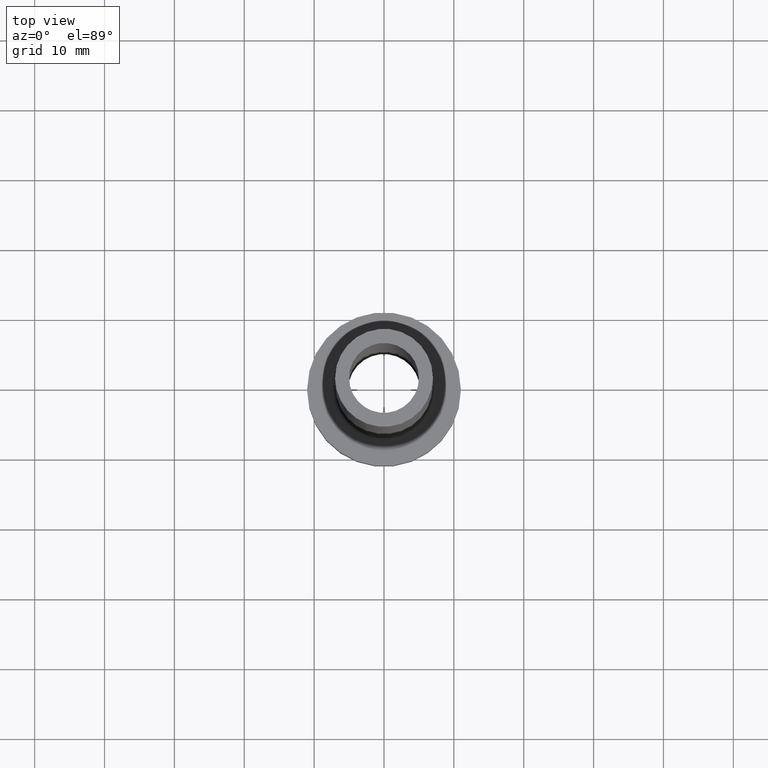
[diagram: clean part render]
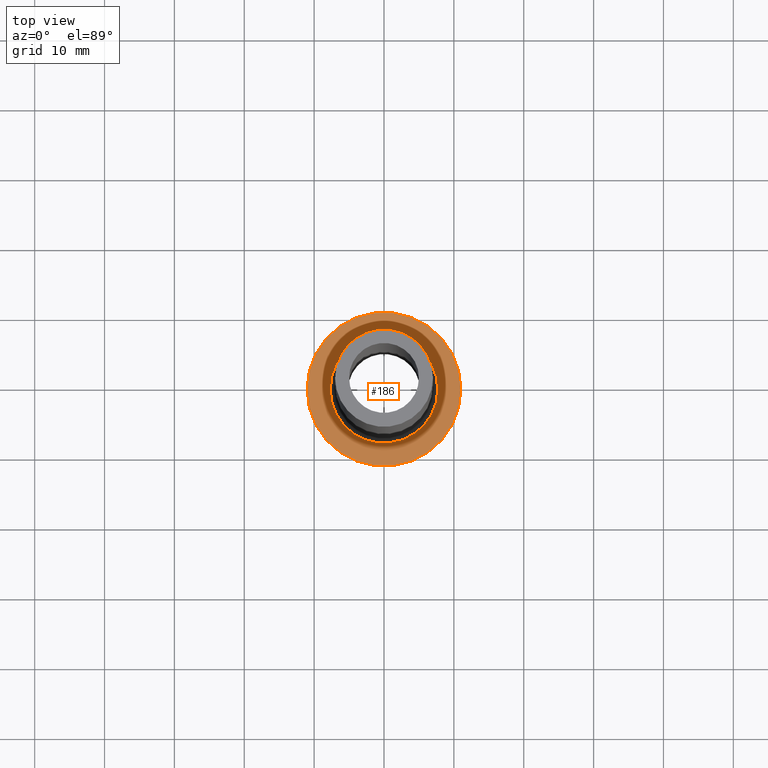
[diagram: same view with one face highlighted and labeled with its STEP entity id]
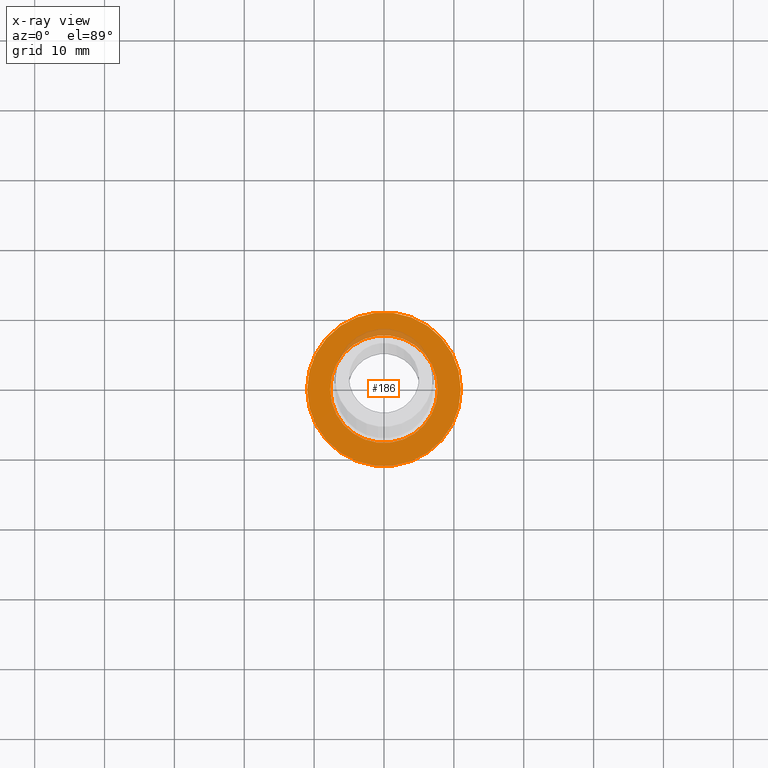
[diagram: x-ray of the same camera — body ghosted, the highlighted face saturated]
A machine part, top view. The second image highlights one B-rep face of the part: STEP entity #186.
The next image is the same camera in x-ray: the body ghosted, the highlighted face saturated — about 5% of this face is hidden behind the body in this view.
In plain terms, the highlighted planar face has unit normal (0, 0, 1).
Its self-contained STEP definition (entity closure, byte-faithful):
#19 = DIRECTION ( 'NONE',  ( 1.000000000000000000, 0.000000000000000000, 0.000000000000000000 ) ) ;
#21 = DIRECTION ( 'NONE',  ( -0.000000000000000000, -0.000000000000000000, -1.000000000000000000 ) ) ;
#29 = EDGE_CURVE ( 'NONE', #427, #305, #161, .T. ) ;
#37 = VERTEX_POINT ( 'NONE', #231 ) ;
#46 = AXIS2_PLACEMENT_3D ( 'NONE', #176, #442, #19 ) ;
#52 = CARTESIAN_POINT ( 'NONE',  ( 0.000000000000000000, 0.000000000000000000, 7.000000000000000000 ) ) ;
#56 = DIRECTION ( 'NONE',  ( 1.000000000000000000, 0.000000000000000000, 0.000000000000000000 ) ) ;
#59 = CARTESIAN_POINT ( 'NONE',  ( 11.00000000000000000, 1.347111479062088405E-15, 7.000000000000000000 ) ) ;
#68 = DIRECTION ( 'NONE',  ( 0.000000000000000000, 0.000000000000000000, 1.000000000000000000 ) ) ;
#104 = ORIENTED_EDGE ( 'NONE', *, *, #128, .T. ) ;
#111 = DIRECTION ( 'NONE',  ( 1.000000000000000000, 0.000000000000000000, -0.000000000000000000 ) ) ;
#112 = EDGE_LOOP ( 'NONE', ( #333, #104 ) ) ;
#113 = AXIS2_PLACEMENT_3D ( 'NONE', #177, #254, #296 ) ;
#116 = AXIS2_PLACEMENT_3D ( 'NONE', #381, #208, #56 ) ;
#128 = EDGE_CURVE ( 'NONE', #220, #37, #432, .T. ) ;
#135 = EDGE_CURVE ( 'NONE', #37, #220, #200, .T. ) ;
#148 = CARTESIAN_POINT ( 'NONE',  ( 0.000000000000000000, 0.000000000000000000, 7.000000000000000000 ) ) ;
#161 = CIRCLE ( 'NONE', #46, 11.00000000000000000 ) ;
#163 = EDGE_LOOP ( 'NONE', ( #307, #221 ) ) ;
#176 = CARTESIAN_POINT ( 'NONE',  ( 0.000000000000000000, 0.000000000000000000, 7.000000000000000000 ) ) ;
#177 = CARTESIAN_POINT ( 'NONE',  ( 0.000000000000000000, 0.000000000000000000, 7.000000000000000000 ) ) ;
#186 = ADVANCED_FACE ( 'NONE', ( #249, #216 ), #389, .T. ) ;
#196 = EDGE_CURVE ( 'NONE', #305, #427, #402, .T. ) ;
#200 = CIRCLE ( 'NONE', #116, 7.700000000000001066 ) ;
#208 = DIRECTION ( 'NONE',  ( -0.000000000000000000, -0.000000000000000000, -1.000000000000000000 ) ) ;
#216 = FACE_OUTER_BOUND ( 'NONE', #163, .T. ) ;
#220 = VERTEX_POINT ( 'NONE', #325 ) ;
#221 = ORIENTED_EDGE ( 'NONE', *, *, #196, .T. ) ;
#231 = CARTESIAN_POINT ( 'NONE',  ( 7.700000000000001066, 0.000000000000000000, 6.999999999999999112 ) ) ;
#233 = AXIS2_PLACEMENT_3D ( 'NONE', #52, #21, #235 ) ;
#235 = DIRECTION ( 'NONE',  ( 1.000000000000000000, 0.000000000000000000, 0.000000000000000000 ) ) ;
#249 = FACE_BOUND ( 'NONE', #112, .T. ) ;
#250 = CARTESIAN_POINT ( 'NONE',  ( -11.00000000000000000, 0.000000000000000000, 7.000000000000000000 ) ) ;
#254 = DIRECTION ( 'NONE',  ( 0.000000000000000000, 0.000000000000000000, 1.000000000000000000 ) ) ;
#296 = DIRECTION ( 'NONE',  ( 1.000000000000000000, 0.000000000000000000, 0.000000000000000000 ) ) ;
#305 = VERTEX_POINT ( 'NONE', #59 ) ;
#307 = ORIENTED_EDGE ( 'NONE', *, *, #29, .T. ) ;
#325 = CARTESIAN_POINT ( 'NONE',  ( -7.700000000000001066, 9.429780353434621002E-16, 6.999999999999999112 ) ) ;
#333 = ORIENTED_EDGE ( 'NONE', *, *, #135, .T. ) ;
#381 = CARTESIAN_POINT ( 'NONE',  ( 0.000000000000000000, 0.000000000000000000, 7.000000000000000000 ) ) ;
#389 = PLANE ( 'NONE',  #457 ) ;
#402 = CIRCLE ( 'NONE', #113, 11.00000000000000000 ) ;
#427 = VERTEX_POINT ( 'NONE', #250 ) ;
#432 = CIRCLE ( 'NONE', #233, 7.700000000000001066 ) ;
#442 = DIRECTION ( 'NONE',  ( 0.000000000000000000, 0.000000000000000000, 1.000000000000000000 ) ) ;
#457 = AXIS2_PLACEMENT_3D ( 'NONE', #148, #68, #111 ) ;